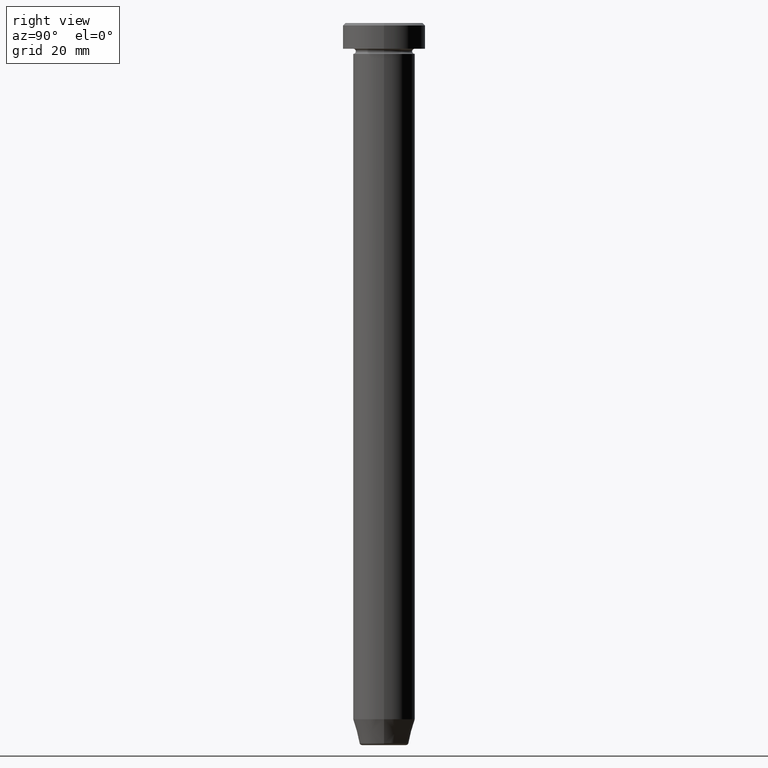
[diagram: clean part render]
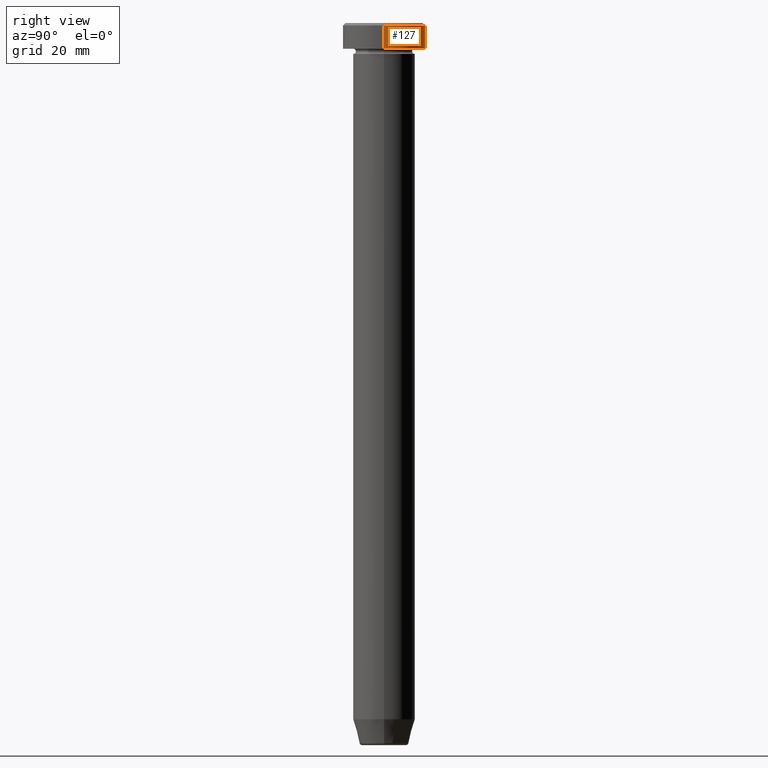
[diagram: same view with one face highlighted and labeled with its STEP entity id]
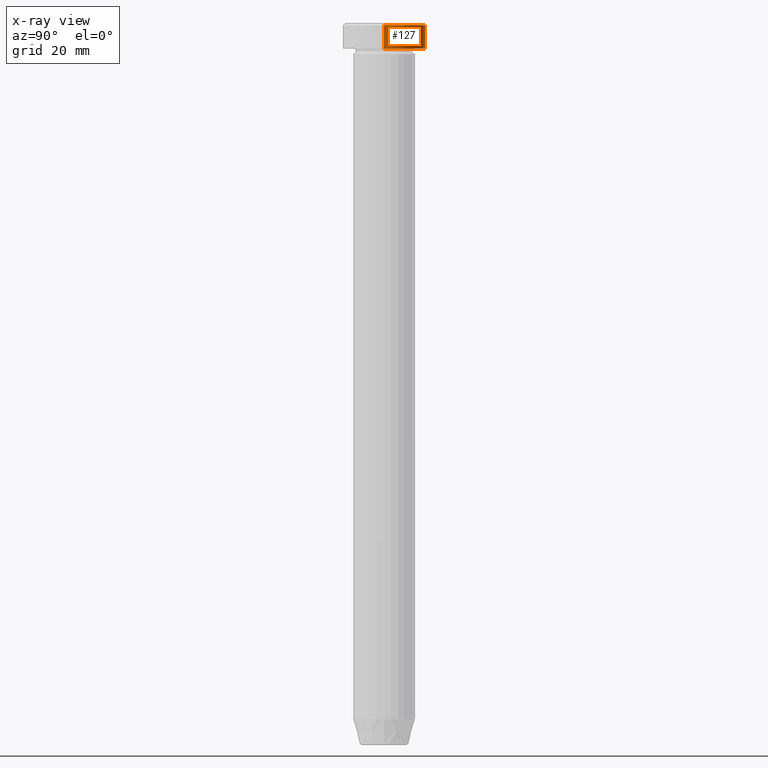
[diagram: x-ray of the same camera — body ghosted, the highlighted face saturated]
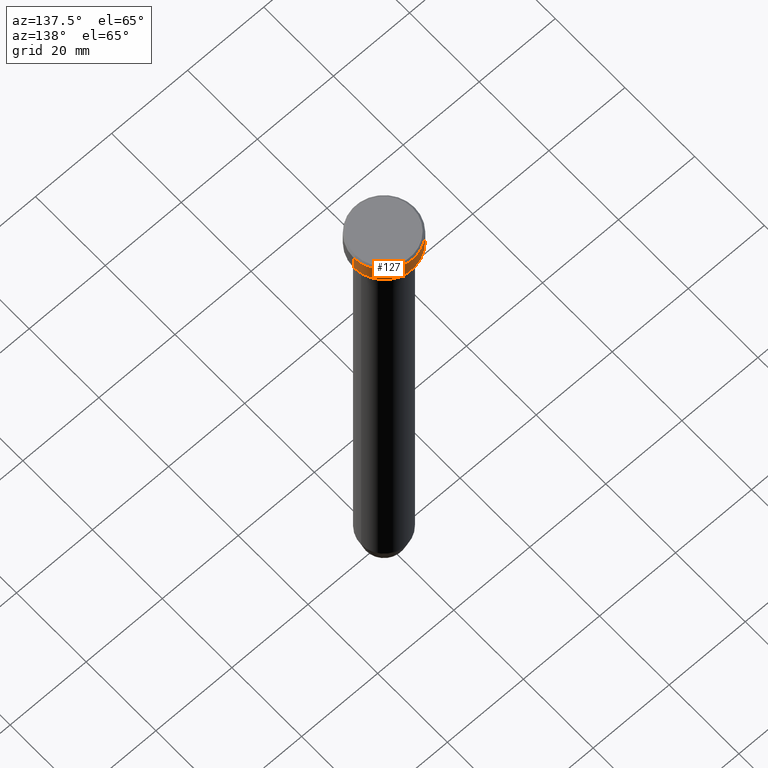
[diagram: same view with one face highlighted and labeled with its STEP entity id]
A machine part, right view. The second image highlights one B-rep face of the part: STEP entity #127.
The next image is the same camera in x-ray: the body ghosted, the highlighted face saturated — about 0% of this face is hidden behind the body in this view.
A second angle (auxiliary view) of the same face is appended — the face is thin or edge-on in the first view.
In plain terms, the highlighted cylindrical surface (partial cylindrical patch) has radius 8 mm, axis along (-0, -0, 1).
Its self-contained STEP definition (entity closure, byte-faithful):
#11 = DIRECTION ( 'NONE',  ( 1.000000000000000000, 0.000000000000000000, 0.000000000000000000 ) ) ;
#13 = CARTESIAN_POINT ( 'NONE',  ( 0.000000000000000000, 0.000000000000000000, -5.000000000000000000 ) ) ;
#19 = CARTESIAN_POINT ( 'NONE',  ( -8.000000000000000000, 9.797174393178825657E-16, -0.5000000000000038858 ) ) ;
#22 = CIRCLE ( 'NONE', #259, 8.000000000000000000 ) ;
#27 = CYLINDRICAL_SURFACE ( 'NONE', #91, 8.000000000000000000 ) ;
#28 = ORIENTED_EDGE ( 'NONE', *, *, #533, .F. ) ;
#76 = DIRECTION ( 'NONE',  ( -0.000000000000000000, -0.000000000000000000, 1.000000000000000000 ) ) ;
#91 = AXIS2_PLACEMENT_3D ( 'NONE', #396, #76, #268 ) ;
#127 = ADVANCED_FACE ( 'NONE', ( #360 ), #27, .T. ) ;
#151 = CARTESIAN_POINT ( 'NONE',  ( 8.000000000000000000, 0.000000000000000000, -5.000000000000000000 ) ) ;
#162 = CARTESIAN_POINT ( 'NONE',  ( -8.000000000000000000, 9.797174393178825657E-16, -5.000000000000000000 ) ) ;
#166 = EDGE_CURVE ( 'NONE', #512, #517, #363, .T. ) ;
#172 = DIRECTION ( 'NONE',  ( -0.000000000000000000, -0.000000000000000000, 1.000000000000000000 ) ) ;
#183 = CARTESIAN_POINT ( 'NONE',  ( 8.000000000000000000, 0.000000000000000000, 0.000000000000000000 ) ) ;
#196 = CARTESIAN_POINT ( 'NONE',  ( 8.000000000000000000, 0.000000000000000000, -0.5000000000000038858 ) ) ;
#203 = VERTEX_POINT ( 'NONE', #196 ) ;
#220 = LINE ( 'NONE', #183, #392 ) ;
#252 = EDGE_LOOP ( 'NONE', ( #567, #350, #383, #28 ) ) ;
#253 = CARTESIAN_POINT ( 'NONE',  ( 0.000000000000000000, 0.000000000000000000, -0.5000000000000038858 ) ) ;
#259 = AXIS2_PLACEMENT_3D ( 'NONE', #13, #382, #11 ) ;
#268 = DIRECTION ( 'NONE',  ( 1.000000000000000000, 0.000000000000000000, 0.000000000000000000 ) ) ;
#280 = AXIS2_PLACEMENT_3D ( 'NONE', #253, #387, #562 ) ;
#319 = DIRECTION ( 'NONE',  ( -0.000000000000000000, -0.000000000000000000, 1.000000000000000000 ) ) ;
#350 = ORIENTED_EDGE ( 'NONE', *, *, #166, .T. ) ;
#360 = FACE_OUTER_BOUND ( 'NONE', #252, .T. ) ;
#363 = LINE ( 'NONE', #399, #419 ) ;
#378 = VERTEX_POINT ( 'NONE', #151 ) ;
#382 = DIRECTION ( 'NONE',  ( -0.000000000000000000, -0.000000000000000000, 1.000000000000000000 ) ) ;
#383 = ORIENTED_EDGE ( 'NONE', *, *, #508, .T. ) ;
#387 = DIRECTION ( 'NONE',  ( 0.000000000000000000, 0.000000000000000000, -1.000000000000000000 ) ) ;
#392 = VECTOR ( 'NONE', #172, 1000.000000000000000 ) ;
#396 = CARTESIAN_POINT ( 'NONE',  ( 0.000000000000000000, 0.000000000000000000, 0.000000000000000000 ) ) ;
#399 = CARTESIAN_POINT ( 'NONE',  ( -8.000000000000000000, 9.797174393178825657E-16, 0.000000000000000000 ) ) ;
#414 = EDGE_CURVE ( 'NONE', #378, #512, #22, .T. ) ;
#419 = VECTOR ( 'NONE', #319, 1000.000000000000000 ) ;
#470 = CIRCLE ( 'NONE', #280, 8.000000000000000000 ) ;
#508 = EDGE_CURVE ( 'NONE', #517, #203, #470, .T. ) ;
#512 = VERTEX_POINT ( 'NONE', #162 ) ;
#517 = VERTEX_POINT ( 'NONE', #19 ) ;
#533 = EDGE_CURVE ( 'NONE', #378, #203, #220, .T. ) ;
#562 = DIRECTION ( 'NONE',  ( 1.000000000000000000, 0.000000000000000000, 0.000000000000000000 ) ) ;
#567 = ORIENTED_EDGE ( 'NONE', *, *, #414, .T. ) ;